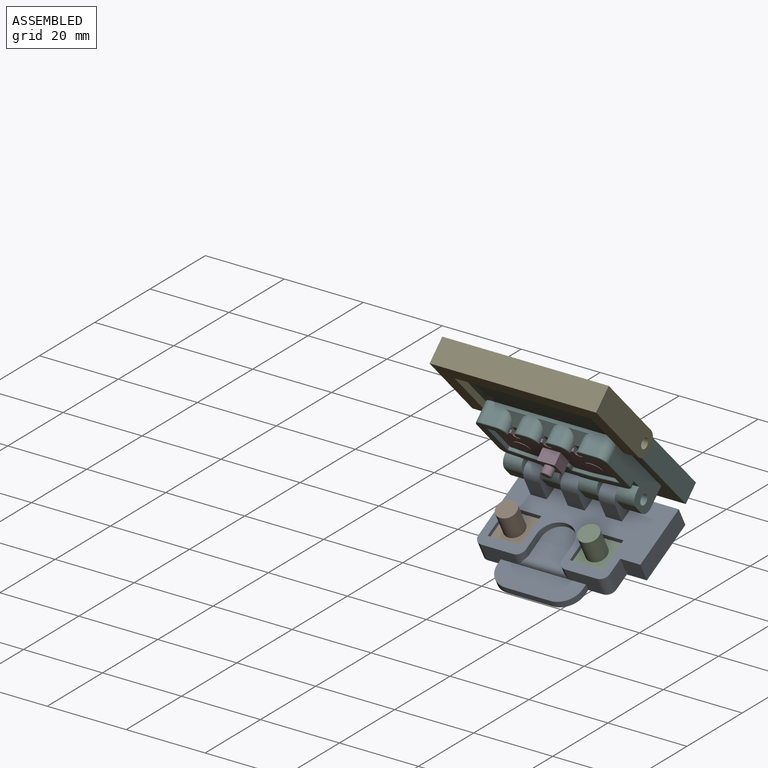
[diagram: assembled view]
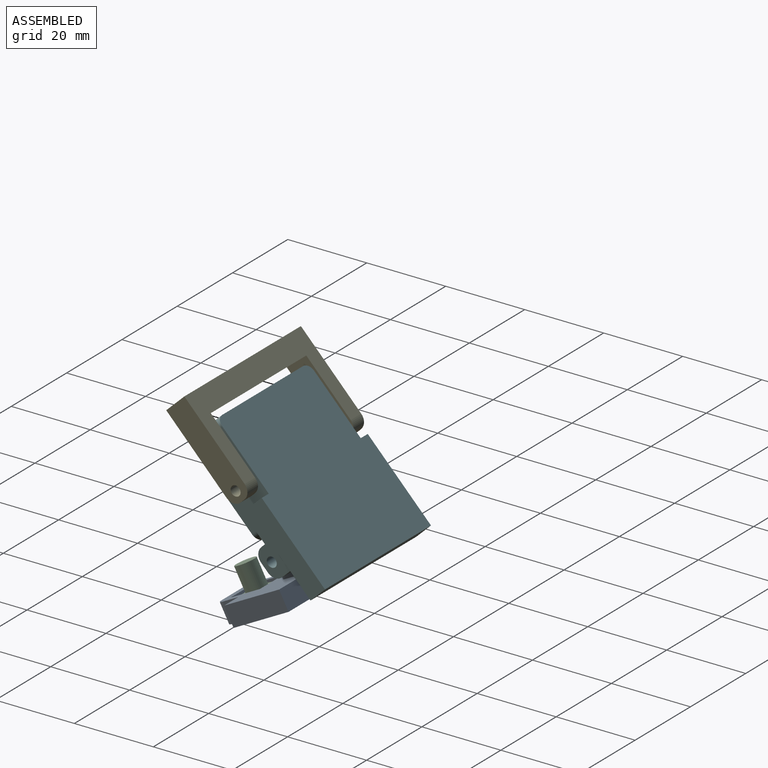
[diagram: assembled view, second angle]
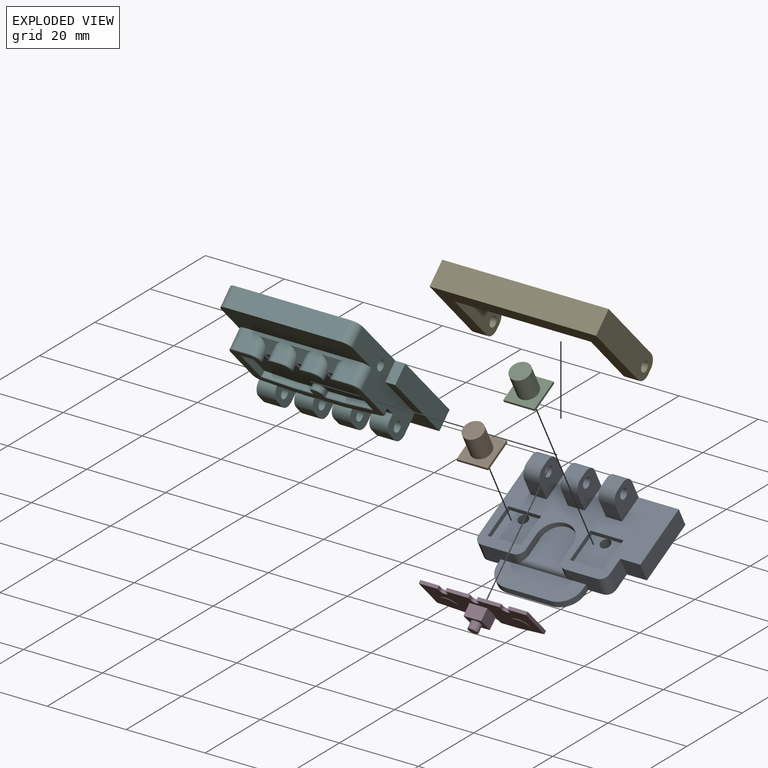
[diagram: exploded view]
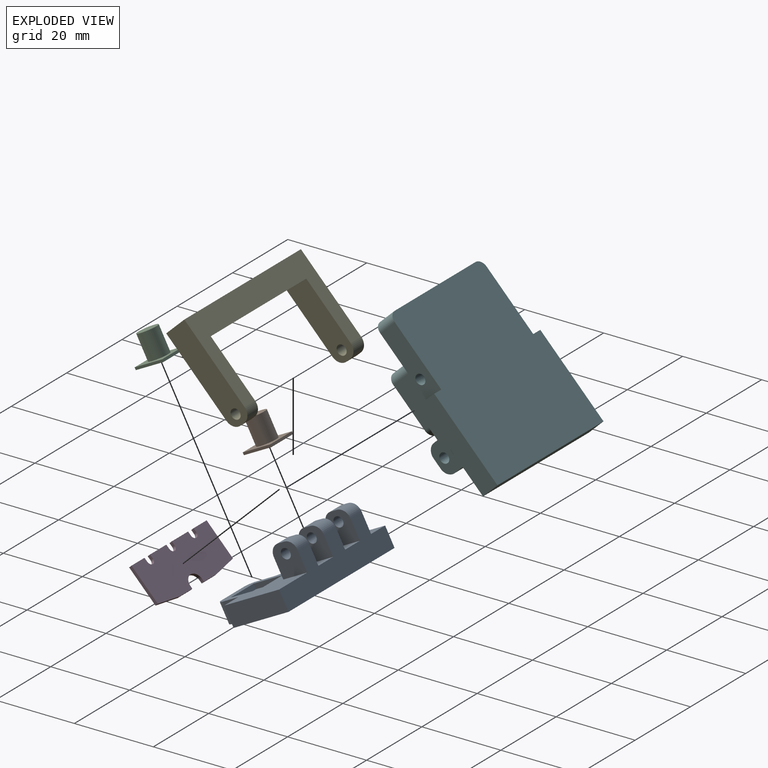
[diagram: exploded view, second angle]
ASSEMBLY  parts=6 mates=5
PART A: 58 faces, bbox 38.4x28.4x12.7 mm
  f0: plane 8x5.08mm, normal (0,-1,0), area 33.2mm2, adj f3,f14,f42,f45,f52,f54
  f1: cylinder r=4.57mm len=9.14mm, axis (0,0,1), area 22.2mm2, adj f3,f30,f31,f51
  f2: plane 9.44x5.08mm, normal (0,0,1), area 46.5mm2, adj f30,f31,f42,f43,f48,f51
  f3: plane 38.35x22.1mm, normal (0,0,1), area 495mm2, adj f0,f1,f4,f5,f6,f10,f11,f12
  f4: plane 5.08x4.06mm, normal (0,-1,0), area 20.6mm2, adj f3,f15,f20,f21
  f5: plane 5.08x4.06mm, normal (0,-1,0), area 20.6mm2, adj f3,f18,f19,f25
  f6: plane 5.08x4.32mm, normal (0,-1,0), area 21.9mm2, adj f3,f16,f17,f22
  f7: plane 4.06x1.78mm, normal (0,0,1), area 7.2mm2, adj f15,f20,f21,f23
  f8: plane 4.06x1.78mm, normal (0,0,1), area 7.2mm2, adj f18,f19,f25,f26
  f9: plane 4.32x1.78mm, normal (0,0,1), area 7.7mm2, adj f16,f17,f22,f24
  f10: plane 38.35x10.16mm, normal (0,1,0), area 258.1mm2, adj f3,f11,f14,f15,f16,f17,f18,f19
  f11: plane 20.07x5.08mm, normal (-1,0,0), area 101.9mm2, adj f3,f10,f14,f44
  f12: plane 8x5.08mm, normal (0,-1,0), area 33.2mm2, adj f3,f14,f43,f44,f52,f53
  f13: plane 5.08x4.32mm, normal (1,0,0), area 21.9mm2, adj f3,f14,f45,f49
  f14: plane 38.35x28.45mm, normal (0,0,-1), area 929.4mm2, adj f0,f10,f11,f12,f13,f44,f45,f46
  f15: plane 7.62x6.86mm, normal (1,0,0), area 44.4mm2, adj f3,f4,f7,f10,f21,f23,f27
  f16: plane 7.62x6.86mm, normal (-1,0,0), area 44.4mm2, adj f3,f6,f9,f10,f22,f24,f29
  f17: plane 7.62x6.86mm, normal (1,0,0), area 44.4mm2, adj f3,f6,f9,f10,f22,f24,f29
  f18: plane 7.62x6.86mm, normal (-1,0,0), area 44.4mm2, adj f3,f5,f8,f10,f25,f26,f28
  f19: plane 7.62x6.86mm, normal (1,0,0), area 44.4mm2, adj f3,f5,f8,f10,f25,f26,f28
  f20: plane 7.62x6.86mm, normal (-1,0,0), area 44.4mm2, adj f3,f4,f7,f10,f21,f23,f27
  f21: cylinder r=2.54mm len=4.06mm, axis (1,0,0), area 16.2mm2, adj f4,f7,f15,f20
  f22: cylinder r=2.54mm len=4.32mm, axis (1,0,0), area 17.2mm2, adj f6,f9,f16,f17
  f23: cylinder r=2.54mm len=4.06mm, axis (-1,0,0), area 16.2mm2, adj f7,f10,f15,f20
  f24: cylinder r=2.54mm len=4.32mm, axis (-1,0,0), area 17.2mm2, adj f9,f10,f16,f17
  f25: cylinder r=2.54mm len=4.06mm, axis (1,0,0), area 16.2mm2, adj f5,f8,f18,f19
  f26: cylinder r=2.54mm len=4.06mm, axis (-1,0,0), area 16.2mm2, adj f8,f10,f18,f19
  f27: cylinder r=1.27mm len=4.06mm, axis (1,0,0), area 32.4mm2, adj f15,f20
  f28: cylinder r=1.27mm len=4.06mm, axis (1,0,0), area 32.4mm2, adj f18,f19
  f29: cylinder r=1.27mm len=4.32mm, axis (1,0,0), area 34.5mm2, adj f16,f17
  f30: plane 4.32x2.03mm, normal (-1,0,0), area 8.8mm2, adj f1,f2,f3,f42
  f31: plane 4.32x2.03mm, normal (1,0,0), area 8.8mm2, adj f1,f2,f3,f43
  f32: plane 8.38x1.27mm, normal (0,-1,0), area 10.6mm2, adj f3,f33,f35,f36
  f33: plane 8.38x1.27mm, normal (1,0,0), area 10.6mm2, adj f3,f32,f34,f36
  f34: plane 8.38x1.27mm, normal (0,1,0), area 10.6mm2, adj f3,f33,f35,f36
  f35: plane 8.38x1.27mm, normal (-1,0,0), area 10.6mm2, adj f3,f32,f34,f36
  f36: plane 8.38x8.38mm, normal (0,0,1), area 65.2mm2, adj f32,f33,f34,f35,f47
  f37: plane 8.38x1.27mm, normal (0,-1,0), area 10.6mm2, adj f3,f38,f40,f41
  f38: plane 8.38x1.27mm, normal (1,0,0), area 10.6mm2, adj f3,f37,f39,f41
  f39: plane 8.38x1.27mm, normal (0,1,0), area 10.6mm2, adj f3,f38,f40,f41
  f40: plane 8.38x1.27mm, normal (-1,0,0), area 10.6mm2, adj f3,f37,f39,f41
  f41: plane 8.38x8.38mm, normal (0,0,1), area 65.2mm2, adj f37,f38,f39,f40,f46
  f42: cylinder r=2.03mm len=3.3mm, axis (0,0,1), area 7.6mm2, adj f0,f2,f3,f30,f48
  f43: cylinder r=2.03mm len=3.3mm, axis (0,0,-1), area 7.6mm2, adj f2,f3,f12,f31,f48
  f44: cylinder r=2.03mm len=5.08mm, axis (0,0,1), area 16.2mm2, adj f3,f11,f12,f14
  f45: cylinder r=2.03mm len=5.08mm, axis (0,0,-1), area 16.2mm2, adj f0,f3,f13,f14
  f46: cylinder r=1.27mm len=3.81mm, axis (0,0,1), area 30.4mm2, adj f14,f41
  f47: cylinder r=1.27mm len=3.81mm, axis (0,0,1), area 30.4mm2, adj f14,f36
  f48: cylinder r=1.27mm len=13.21mm, axis (-1,0,0), area 22mm2, adj f2,f42,f43,f52
  f49: plane 5.08x5.08mm, normal (0,-1,0), area 25.8mm2, adj f3,f13,f14,f50
  f50: plane 15.75x5.08mm, normal (1,0,0), area 80mm2, adj f3,f10,f14,f49
  f51: plane 9.14x4.57mm, normal (0,-0.16,0.99), area 33.3mm2, adj f1,f2
  f52: plane 21.59x6.35mm, normal (0,0,1), area 126mm2, adj f0,f12,f48,f53,f54,f55,f56,f57
  f53: plane 1.78x1.27mm, normal (-1,0,0), area 2.3mm2, adj f12,f14,f52,f56
  f54: plane 1.78x1.27mm, normal (1,0,0), area 2.3mm2, adj f0,f14,f52,f57
  f55: plane 11.43x1.78mm, normal (0,-1,0), area 20.3mm2, adj f14,f52,f56,f57
  f56: cylinder r=5.08mm len=5.08mm, axis (0,0,1), area 14.2mm2, adj f14,f52,f53,f55
  f57: cylinder r=5.08mm len=5.08mm, axis (0,0,-1), area 14.2mm2, adj f14,f52,f54,f55
PART B: 8 faces, bbox 7.9x7.9x7 mm
  f0: plane 7.87x0.64mm, normal (0,1,0), area 5mm2, adj f1,f3,f4,f5
  f1: plane 7.87x0.64mm, normal (-1,0,0), area 5mm2, adj f0,f2,f4,f5
  f2: plane 7.87x0.64mm, normal (0,-1,0), area 5mm2, adj f1,f3,f4,f5
  f3: plane 7.87x0.64mm, normal (1,0,0), area 5mm2, adj f0,f2,f4,f5
  f4: plane 7.87x7.87mm, normal (0,0,1), area 41.7mm2, adj f0,f1,f2,f3,f6
  f5: plane 7.87x7.87mm, normal (0,0,-1), area 62mm2, adj f0,f1,f2,f3
  f6: cylinder r=2.54mm len=6.35mm, axis (0,0,-1), area 101.3mm2, adj f4,f7
  f7: plane 5.08x5.08mm, normal (0,0,1), area 20.3mm2, adj f6
PART C: 8 faces, bbox 7.9x7.9x7 mm
  f0: plane 7.87x0.64mm, normal (0,1,0), area 5mm2, adj f1,f3,f4,f5
  f1: plane 7.87x0.64mm, normal (-1,0,0), area 5mm2, adj f0,f2,f4,f5
  f2: plane 7.87x0.64mm, normal (0,-1,0), area 5mm2, adj f1,f3,f4,f5
  f3: plane 7.87x0.64mm, normal (1,0,0), area 5mm2, adj f0,f2,f4,f5
  f4: plane 7.87x7.87mm, normal (0,0,1), area 41.7mm2, adj f0,f1,f2,f3,f6
  f5: plane 7.87x7.87mm, normal (0,0,-1), area 62mm2, adj f0,f1,f2,f3
  f6: cylinder r=2.54mm len=6.35mm, axis (0,0,-1), area 101.3mm2, adj f4,f7
  f7: plane 5.08x5.08mm, normal (0,0,1), area 20.3mm2, adj f6
PART D: 36 faces, bbox 27.2x10.7x5.9 mm
  f0: plane 9.63x0.81mm, normal (1,0,0), area 7.8mm2, adj f1,f21,f22,f23
  f1: plane 7.04x1.04mm, normal (0.15,0.99,0), area 5.8mm2, adj f0,f2,f22,f23
  f2: plane 4.45x0.81mm, normal (0,1,0), area 3.6mm2, adj f1,f3,f22,f23
  f3: plane 0.81x0.66mm, normal (-1,0,0), area 0.5mm2, adj f2,f4,f22,f23
  f4: cylinder r=2.11mm len=4.22mm, axis (0,0,-1), area 5.4mm2, adj f3,f5,f22,f23
  f5: plane 0.81x0.66mm, normal (1,0,0), area 0.5mm2, adj f4,f6,f22,f23
  f6: plane 4.45x0.81mm, normal (0,1,0), area 3.6mm2, adj f5,f7,f22,f23
  f7: plane 7.04x1.04mm, normal (-0.15,0.99,0), area 5.8mm2, adj f6,f8,f22,f23
  f8: plane 9.63x0.81mm, normal (-1,0,0), area 7.8mm2, adj f7,f9,f22,f23
  f9: plane 4.72x0.81mm, normal (0,-1,0), area 3.8mm2, adj f8,f10,f22,f23
  f10: plane 1.02x0.81mm, normal (1,0,0), area 0.8mm2, adj f9,f11,f22,f23
  f11: cylinder r=0.99mm len=1.98mm, axis (0,0,-1), area 2.5mm2, adj f10,f12,f22,f23
  f12: plane 1.02x0.81mm, normal (-1,0,0), area 0.8mm2, adj f11,f13,f22,f23
  f13: plane 5.89x0.81mm, normal (0,-1,0), area 4.8mm2, adj f12,f14,f22,f23
  f14: plane 1.02x0.81mm, normal (1,0,0), area 0.8mm2, adj f13,f15,f22,f23
  f15: cylinder r=0.99mm len=1.98mm, axis (0,0,-1), area 2.5mm2, adj f14,f16,f22,f23
  f16: plane 1.02x0.81mm, normal (-1,0,0), area 0.8mm2, adj f15,f17,f22,f23
  f17: plane 5.89x0.81mm, normal (0,-1,0), area 4.8mm2, adj f16,f18,f22,f23
  f18: plane 1.02x0.81mm, normal (1,0,0), area 0.8mm2, adj f17,f19,f22,f23
  f19: cylinder r=0.99mm len=1.98mm, axis (0,0,-1), area 2.5mm2, adj f18,f20,f22,f23
  f20: plane 1.02x0.81mm, normal (-1,0,0), area 0.8mm2, adj f19,f21,f22,f23
  f21: plane 4.72x0.81mm, normal (0,-1,0), area 3.8mm2, adj f0,f20,f22,f23
  f22: plane 27.18x10.67mm, normal (0,0,1), area 262.2mm2, adj f0,f1,f2,f3,f4,f5,f6,f7
  f23: plane 27.18x10.67mm, normal (0,0,-1), area 216mm2, adj f0,f1,f2,f3,f4,f5,f6,f7
  f24: cylinder r=2.03mm len=4.06mm, axis (0,0,1), area 1.6mm2, adj f23,f25
  f25: plane 4.06x4.06mm, normal (0,0,-1), area 13mm2, adj f24
  f26: cylinder r=2.03mm len=4.06mm, axis (0,0,1), area 1.6mm2, adj f23,f27
  f27: plane 4.06x4.06mm, normal (0,0,-1), area 13mm2, adj f26
  f28: plane 4.5x3.05mm, normal (0,1,0), area 13.7mm2, adj f23,f29,f31,f32
  f29: plane 4.5x3.05mm, normal (1,0,0), area 13.7mm2, adj f23,f28,f30,f32
  f30: plane 4.5x3.05mm, normal (0,-1,0), area 13.7mm2, adj f23,f29,f31,f32
  f31: plane 4.5x3.05mm, normal (-1,0,0), area 13.7mm2, adj f23,f28,f30,f32
  f32: plane 4.5x4.5mm, normal (0,0,-1), area 15.1mm2, adj f28,f29,f30,f31,f33
  f33: cylinder r=1.27mm len=2.54mm, axis (0,0,1), area 14.2mm2, adj f32,f35
  f34: plane 2.03x2.03mm, normal (0,0,-1), area 3.2mm2, adj f35
  f35: torus R=1.02mm, axis (0,0,-1), area 3mm2, adj f33,f34
PART E: 16 faces, bbox 42.2x6.4x24.6 mm
  f0: plane 24.64x6.35mm, normal (-1,0,0), area 148.6mm2, adj f1,f6,f7,f8,f10,f12,f15
  f1: plane 3.81x1.27mm, normal (0,0,-1), area 4.8mm2, adj f0,f2,f10,f12
  f2: plane 19.43x6.35mm, normal (1,0,0), area 113.6mm2, adj f1,f7,f8,f10,f12,f13,f15
  f3: plane 19.43x6.35mm, normal (-1,0,0), area 113.6mm2, adj f4,f7,f8,f9,f11,f13,f14
  f4: plane 3.81x1.27mm, normal (0,0,-1), area 4.8mm2, adj f3,f5,f9,f11
  f5: plane 24.64x6.35mm, normal (1,0,0), area 148.6mm2, adj f4,f6,f7,f8,f9,f11,f14
  f6: plane 42.16x6.35mm, normal (0,0,1), area 267.7mm2, adj f0,f5,f7,f8
  f7: plane 42.16x22.1mm, normal (0,-1,0), area 348.3mm2, adj f0,f2,f3,f5,f6,f11,f12,f13
  f8: plane 42.16x22.1mm, normal (0,1,0), area 369.4mm2, adj f0,f2,f3,f5,f6,f9,f10,f13
  f9: cylinder r=2.54mm len=3.81mm, axis (1,0,0), area 15.2mm2, adj f3,f4,f5,f8
  f10: cylinder r=2.54mm len=3.81mm, axis (1,0,0), area 15.2mm2, adj f0,f1,f2,f8
  f11: cylinder r=2.54mm len=3.81mm, axis (-1,0,0), area 15.2mm2, adj f3,f4,f5,f7
  f12: cylinder r=2.54mm len=3.81mm, axis (-1,0,0), area 15.2mm2, adj f0,f1,f2,f7
  f13: plane 34.54x6.35mm, normal (0,-0.1,-1), area 220.4mm2, adj f2,f3,f7,f8
  f14: cylinder r=1.27mm len=3.81mm, axis (-1,0,0), area 30.4mm2, adj f3,f5
  f15: cylinder r=1.27mm len=3.81mm, axis (-1,0,0), area 30.4mm2, adj f0,f2
PART F: 132 faces, bbox 38.4x42.2x12.7 mm
  f0: plane 42.16x38.35mm, normal (0,0,1), area 1518.6mm2, adj f2,f30,f31,f124,f125,f126,f127,f128
  f1: plane 38.35x23.11mm, normal (0,0,-1), area 481.3mm2, adj f14,f15,f16,f30,f31,f38,f39,f40
  f2: plane 29.21x5.08mm, normal (0,-1,0), area 148.4mm2, adj f0,f123,f129,f130
  f3: plane 5.23x1.27mm, normal (0,1,0), area 6.6mm2, adj f10,f21,f66,f92
  f4: plane 5.89x1.27mm, normal (0,1,0), area 7.5mm2, adj f10,f63,f67,f118
  f5: plane 5.89x1.27mm, normal (0,1,0), area 7.5mm2, adj f10,f60,f64,f112
  f6: plane 29.21x5.08mm, normal (0,-1,0), area 71mm2, adj f69,f70,f71,f75,f76,f77,f78,f79
  f7: plane 32.77x16.52mm, normal (0,0,-1), area 145.7mm2, adj f43,f44,f52,f53,f85,f86,f87,f88
  f8: plane 5.38x2.03mm, normal (0,0,-1), area 9.6mm2, adj f116,f117,f118,f119,f120,f121
  f9: plane 5.38x2.03mm, normal (0,0,-1), area 9.6mm2, adj f110,f111,f112,f113,f114,f115
  f10: plane 28.19x11.68mm, normal (0,0,-1), area 296.7mm2, adj f3,f4,f5,f20,f21,f22,f23,f24
  f11: plane 4.7x2.54mm, normal (0,0,-1), area 11.9mm2, adj f43,f47,f50,f53
  f12: plane 4.7x2.54mm, normal (0,0,-1), area 11.9mm2, adj f40,f44,f49,f52
  f13: plane 4.7x2.54mm, normal (0,0,-1), area 11.9mm2, adj f31,f41,f48,f51
  f14: plane 5.08x4.7mm, normal (0,1,0), area 23.9mm2, adj f1,f30,f46,f55
  f15: plane 5.08x4.7mm, normal (0,1,0), area 23.9mm2, adj f1,f43,f47,f50
  f16: plane 5.08x4.7mm, normal (0,1,0), area 23.9mm2, adj f1,f40,f44,f49
  f17: plane 4.7x1.27mm, normal (0,-1,0), area 6mm2, adj f30,f34,f46,f54
  f18: plane 1.27x0.33mm, normal (0,-1,0), area 0.4mm2, adj f29,f34,f47,f53
  f19: plane 1.27x0.33mm, normal (0,-1,0), area 0.4mm2, adj f32,f35,f40,f52
  f20: plane 5.23x1.27mm, normal (0,1,0), area 6.6mm2, adj f10,f33,f61,f108
  f21: plane 10.57x1.27mm, normal (1,0,0), area 13.4mm2, adj f3,f10,f22,f93
  f22: plane 7.51x1.27mm, normal (0.15,-0.99,0), area 9.6mm2, adj f10,f21,f23,f94
  f23: plane 4.99x1.27mm, normal (0,-1,0), area 6.3mm2, adj f10,f22,f24,f95
  f24: plane 1.27x1.17mm, normal (-1,0,0), area 1.5mm2, adj f10,f23,f25,f96
  f25: cylinder r=1.6mm len=3.2mm, axis (0,0,1), area 6.4mm2, adj f10,f24,f26,f98
  f26: plane 1.27x1.17mm, normal (1,0,0), area 1.5mm2, adj f10,f25,f27,f100
  f27: plane 4.99x1.27mm, normal (0,-1,0), area 6.3mm2, adj f10,f26,f28,f102
  f28: plane 7.51x1.27mm, normal (-0.15,-0.99,0), area 9.6mm2, adj f10,f27,f33,f104
  f29: plane 8.13x1.27mm, normal (-0.15,0.99,0), area 10.4mm2, adj f18,f34,f81,f85
  f30: plane 32.51x12.7mm, normal (-1,0,0), area 202.4mm2, adj f0,f1,f14,f17,f34,f37,f54,f55
  f31: plane 32.51x12.7mm, normal (1,0,0), area 202.4mm2, adj f0,f1,f13,f35,f36,f38,f48,f51
  f32: plane 8.13x1.27mm, normal (0.15,0.99,0), area 10.4mm2, adj f19,f35,f84,f97
  f33: plane 10.57x1.27mm, normal (-1,0,0), area 13.4mm2, adj f10,f20,f28,f106
  f34: plane 9.86x3.21mm, normal (0,0,-1), area 7.8mm2, adj f17,f18,f29,f30,f45,f81
  f35: plane 9.86x3.21mm, normal (0,0,-1), area 7.8mm2, adj f19,f31,f32,f36,f39,f84
  f36: plane 4.7x1.27mm, normal (0,-1,0), area 6mm2, adj f31,f35,f41,f51
  f37: plane 4.7x2.54mm, normal (0,0,-1), area 11.9mm2, adj f30,f46,f54,f55
  f38: plane 5.08x4.7mm, normal (0,1,0), area 23.9mm2, adj f1,f31,f41,f48
  f39: plane 4.83x3.81mm, normal (0,1,0), area 18.4mm2, adj f1,f35,f40,f41
  f40: plane 7.62x7.62mm, normal (1,0,0), area 50.2mm2, adj f1,f12,f16,f19,f39,f49,f52,f58
  f41: plane 7.62x7.62mm, normal (-1,0,0), area 50.2mm2, adj f1,f13,f36,f38,f39,f48,f51,f59
  f42: plane 5.08x4.83mm, normal (0,1,0), area 24.5mm2, adj f1,f43,f44,f122
  f43: plane 7.87x7.62mm, normal (1,0,0), area 50.2mm2, adj f1,f7,f11,f15,f42,f50,f53,f56
  f44: plane 7.87x7.62mm, normal (-1,0,0), area 50.2mm2, adj f1,f7,f12,f16,f42,f49,f52,f58
  f45: plane 4.83x3.81mm, normal (0,1,0), area 18.4mm2, adj f1,f34,f46,f47
  f46: plane 7.62x7.62mm, normal (1,0,0), area 50.2mm2, adj f1,f14,f17,f37,f45,f54,f55,f57
  f47: plane 7.62x7.62mm, normal (-1,0,0), area 50.2mm2, adj f1,f11,f15,f18,f45,f50,f53,f56
  f48: cylinder r=2.54mm len=4.7mm, axis (1,0,0), area 18.7mm2, adj f13,f31,f38,f41
  f49: cylinder r=2.54mm len=4.7mm, axis (1,0,0), area 18.7mm2, adj f12,f16,f40,f44
  f50: cylinder r=2.54mm len=4.7mm, axis (1,0,0), area 18.7mm2, adj f11,f15,f43,f47
  f51: cylinder r=2.54mm len=4.7mm, axis (-1,0,0), area 18.7mm2, adj f13,f31,f36,f41
  f52: cylinder r=2.54mm len=4.7mm, axis (-1,0,0), area 17.9mm2, adj f7,f12,f19,f40,f44,f97
  f53: cylinder r=2.54mm len=4.7mm, axis (-1,0,0), area 17.9mm2, adj f7,f11,f18,f43,f47,f85
  f54: cylinder r=2.54mm len=4.7mm, axis (-1,0,0), area 18.7mm2, adj f17,f30,f37,f46
  f55: cylinder r=2.54mm len=4.7mm, axis (1,0,0), area 18.7mm2, adj f14,f30,f37,f46
  f56: cylinder r=1.27mm len=4.7mm, axis (-1,0,0), area 37.5mm2, adj f43,f47
  f57: cylinder r=1.27mm len=4.7mm, axis (-1,0,0), area 37.5mm2, adj f30,f46
  f58: cylinder r=1.27mm len=4.7mm, axis (-1,0,0), area 37.5mm2, adj f40,f44
  f59: cylinder r=1.27mm len=4.7mm, axis (-1,0,0), area 37.5mm2, adj f31,f41
  f60: plane 3.3x2.24mm, normal (1,0,0), area 2.2mm2, adj f5,f10,f62,f69,f72,f79,f110
  f61: plane 3.3x2.24mm, normal (-1,0,0), area 2.2mm2, adj f10,f20,f62,f69,f72,f80,f109
  f62: plane 2.34x1.98mm, normal (0,0,-1), area 4.6mm2, adj f60,f61,f69,f72
  f63: plane 3.3x2.24mm, normal (1,0,0), area 2.2mm2, adj f4,f10,f65,f70,f73,f77,f116
  f64: plane 3.3x2.24mm, normal (-1,0,0), area 2.2mm2, adj f5,f10,f65,f70,f73,f78,f114
  f65: plane 2.34x1.98mm, normal (0,0,-1), area 4.6mm2, adj f63,f64,f70,f73
  f66: plane 3.3x2.24mm, normal (1,0,0), area 2.2mm2, adj f3,f10,f68,f71,f74,f75,f91
  f67: plane 3.3x2.24mm, normal (-1,0,0), area 2.2mm2, adj f4,f10,f68,f71,f74,f76,f120
  f68: plane 2.34x1.98mm, normal (0,0,-1), area 4.6mm2, adj f66,f67,f71,f74
  f69: plane 6.05x2.54mm, normal (0,-0.71,-0.71), area 9.6mm2, adj f6,f60,f61,f62,f79,f80
  f70: plane 6.05x2.54mm, normal (0,-0.71,-0.71), area 9.6mm2, adj f6,f63,f64,f65,f77,f78
  f71: plane 6.05x2.54mm, normal (0,-0.71,-0.71), area 9.6mm2, adj f6,f66,f67,f68,f75,f76
  f72: plane 1.98x0.46mm, normal (0,-0.71,-0.71), area 1.3mm2, adj f10,f60,f61,f62
  f73: plane 1.98x0.46mm, normal (0,-0.71,-0.71), area 1.3mm2, adj f10,f63,f64,f65
  f74: plane 1.98x0.46mm, normal (0,-0.71,-0.71), area 1.3mm2, adj f10,f66,f67,f68
  f75: cylinder r=2.03mm len=4.27mm, axis (0,0,1), area 11.3mm2, adj f6,f66,f71,f90
  f76: cylinder r=2.03mm len=4.27mm, axis (0,0,-1), area 11.3mm2, adj f6,f67,f71,f121
  f77: cylinder r=2.03mm len=4.27mm, axis (0,0,1), area 11.3mm2, adj f6,f63,f70,f117
  f78: cylinder r=2.03mm len=4.27mm, axis (0,0,-1), area 11.3mm2, adj f6,f64,f70,f115
  f79: cylinder r=2.03mm len=4.27mm, axis (0,0,1), area 11.3mm2, adj f6,f60,f69,f111
  f80: cylinder r=2.03mm len=4.27mm, axis (0,0,-1), area 11.3mm2, adj f6,f61,f69,f107
  f81: cylinder r=2.03mm len=2.01mm, axis (0,0,-1), area 3.7mm2, adj f29,f30,f34,f86
  f82: cylinder r=2.03mm len=5.08mm, axis (0,0,-1), area 16.2mm2, adj f6,f30,f88,f123
  f83: cylinder r=2.03mm len=5.08mm, axis (0,0,1), area 16.2mm2, adj f6,f31,f103,f123
  f84: cylinder r=2.03mm len=2.01mm, axis (0,0,1), area 3.7mm2, adj f31,f32,f35,f99
  f85: cylinder r=0.25mm len=9.95mm, axis (0.99,0.15,0), area 3.6mm2, adj f7,f29,f53,f86
  f86: torus R=1.78mm, axis (0,0,1), area 1.1mm2, adj f7,f81,f85,f87
  f87: cylinder r=0.25mm len=11.52mm, axis (0,1,0), area 4.6mm2, adj f7,f30,f86,f88
  f88: torus R=1.78mm, axis (0,0,1), area 1.2mm2, adj f7,f82,f87,f89
  f89: cylinder r=0.25mm len=3.71mm, axis (-1,0,0), area 1.5mm2, adj f6,f7,f88,f90
  f90: torus R=1.78mm, axis (0,0,1), area 1.2mm2, adj f7,f75,f89,f91
  f91: cylinder r=0.25mm len=0.51mm, axis (0,-1,0), area 0.2mm2, adj f7,f66,f90,f92
  f92: cylinder r=0.25mm len=5.49mm, axis (1,0,0), area 2.1mm2, adj f3,f7,f91,f93
  f93: cylinder r=0.25mm len=11.05mm, axis (0,-1,0), area 4.3mm2, adj f7,f21,f92,f94
  f94: cylinder r=0.25mm len=7.78mm, axis (-0.99,-0.15,0), area 3.1mm2, adj f7,f22,f93,f95
  f95: cylinder r=0.25mm len=5.26mm, axis (-1,0,0), area 2mm2, adj f7,f23,f94,f96
  f96: cylinder r=0.25mm len=1.42mm, axis (0,1,0), area 0.5mm2, adj f7,f24,f95,f98
  f97: cylinder r=0.25mm len=9.95mm, axis (0.99,-0.15,0), area 3.6mm2, adj f7,f32,f52,f99
  f98: torus R=1.35mm, axis (0,0,1), area 1.9mm2, adj f7,f25,f96,f100
  f99: torus R=1.78mm, axis (0,0,1), area 1.1mm2, adj f7,f84,f97,f101
  f100: cylinder r=0.25mm len=1.42mm, axis (0,-1,0), area 0.5mm2, adj f7,f26,f98,f102
  f101: cylinder r=0.25mm len=11.52mm, axis (0,-1,0), area 4.6mm2, adj f7,f31,f99,f103
  f102: cylinder r=0.25mm len=5.26mm, axis (-1,0,0), area 2mm2, adj f7,f27,f100,f104
  f103: torus R=1.78mm, axis (0,0,1), area 1.2mm2, adj f7,f83,f101,f105
  f104: cylinder r=0.25mm len=7.78mm, axis (-0.99,0.15,0), area 3.1mm2, adj f7,f28,f102,f106
  f105: cylinder r=0.25mm len=3.71mm, axis (-1,0,0), area 1.5mm2, adj f6,f7,f103,f107
  f106: cylinder r=0.25mm len=11.05mm, axis (0,1,0), area 4.3mm2, adj f7,f33,f104,f108
  f107: torus R=1.78mm, axis (0,0,1), area 1.2mm2, adj f7,f80,f105,f109
  f108: cylinder r=0.25mm len=5.49mm, axis (1,0,0), area 2.1mm2, adj f7,f20,f106,f109
  f109: cylinder r=0.25mm len=0.51mm, axis (0,1,0), area 0.2mm2, adj f7,f61,f107,f108
  f110: cylinder r=0.25mm len=0.51mm, axis (0,-1,0), area 0.2mm2, adj f9,f60,f111,f112
  f111: torus R=1.78mm, axis (0,0,1), area 1.2mm2, adj f9,f79,f110,f113
  f112: cylinder r=0.25mm len=5.89mm, axis (1,0,0), area 2.2mm2, adj f5,f9,f110,f114
  f113: cylinder r=0.25mm len=1.83mm, axis (-1,0,0), area 0.7mm2, adj f6,f9,f111,f115
  f114: cylinder r=0.25mm len=0.51mm, axis (0,1,0), area 0.2mm2, adj f9,f64,f112,f115
  f115: torus R=1.78mm, axis (0,0,1), area 1.2mm2, adj f9,f78,f113,f114
  f116: cylinder r=0.25mm len=0.51mm, axis (0,-1,0), area 0.2mm2, adj f8,f63,f117,f118
  f117: torus R=1.78mm, axis (0,0,1), area 1.2mm2, adj f8,f77,f116,f119
  f118: cylinder r=0.25mm len=5.89mm, axis (1,0,0), area 2.2mm2, adj f4,f8,f116,f120
  f119: cylinder r=0.25mm len=1.83mm, axis (-1,0,0), area 0.7mm2, adj f6,f8,f117,f121
  f120: cylinder r=0.25mm len=0.51mm, axis (0,1,0), area 0.2mm2, adj f8,f67,f118,f121
  f121: torus R=1.78mm, axis (0,0,1), area 1.2mm2, adj f8,f76,f119,f120
  f122: cylinder r=0.25mm len=4.83mm, axis (-1,0,0), area 1.9mm2, adj f7,f42,f43,f44
  f123: plane 33.27x12.19mm, normal (0,0,-1), area 338.1mm2, adj f2,f6,f30,f31,f82,f83,f129,f130
  f124: plane 38.35x5.08mm, normal (0,1,0), area 194.8mm2, adj f0,f1,f125,f126
  f125: plane 23.11x5.08mm, normal (-1,0,0), area 117.4mm2, adj f0,f1,f124,f127
  f126: plane 23.11x5.08mm, normal (1,0,0), area 117.4mm2, adj f0,f1,f124,f128
  f127: plane 5.08x2.54mm, normal (0,-1,0), area 12.9mm2, adj f0,f1,f30,f125
  f128: plane 5.08x2.54mm, normal (0,-1,0), area 12.9mm2, adj f0,f1,f31,f126
  f129: cylinder r=2.03mm len=5.08mm, axis (0,0,1), area 16.2mm2, adj f0,f2,f31,f123
  f130: cylinder r=2.03mm len=5.08mm, axis (0,0,-1), area 16.2mm2, adj f0,f2,f30,f123
  f131: cylinder r=1.27mm len=33.27mm, axis (-1,0,0), area 265.5mm2, adj f30,f31
PLACE A rot(axis=(1,0,0),28deg) t=(17.11,3.55,-15.59)mm
PLACE B rot(axis=(1,0,0),28deg) t=(17.11,3.35,-15.7)mm
PLACE C rot(axis=(1,0,0),28deg) t=(17.11,3.35,-15.7)mm
PLACE D rot(axis=(-1,0,0),46.2deg) t=(20.16,3.51,15.03)mm
PLACE E rot(axis=(1,0,0),43.7deg) t=(12.67,13.27,18.88)mm
PLACE F rot(axis=(-1,0,0),46.2deg) t=(20.16,3.45,15.09)mm
MATE fastened A.f36 <-> C.f6  axis (0,-0.47,0.88) through (44.16,7.5,-9.18)mm
MATE revolute F.f131 <-> E.f14  axis (1,0,0) through (51.02,9.22,18.52)mm
MATE revolute A.f27 <-> F.f56  axis (-1,0,0) through (21.81,15.27,2.14)mm
MATE fastened B.f6 <-> A.f41  axis (0,0.47,-0.88) through (23.33,7.5,-9.18)mm
MATE fastened F.f10 <-> D.f22  axis (0,-0.72,-0.69) through (33.75,7.72,11.83)mm
